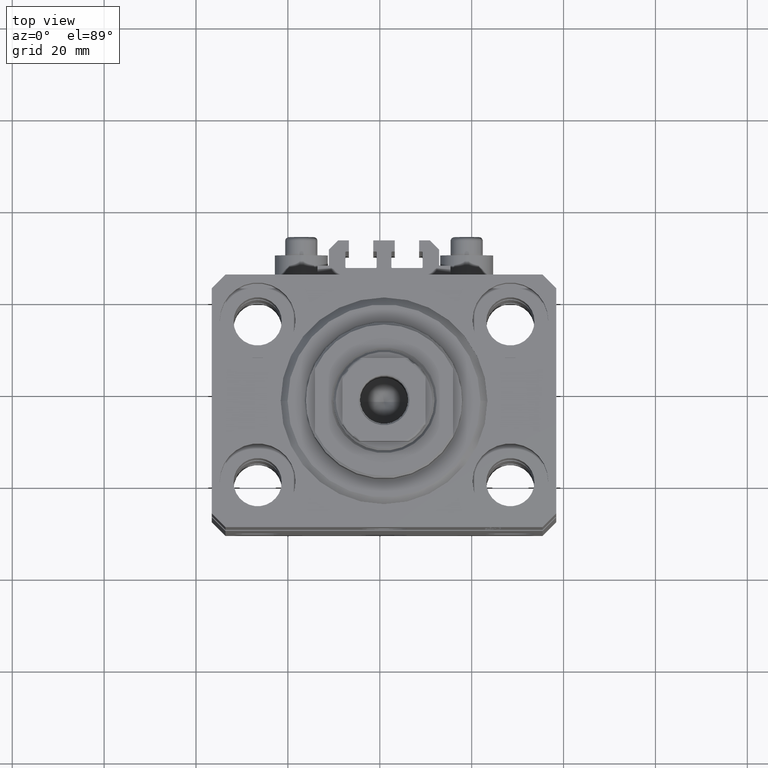
[diagram: clean part render]
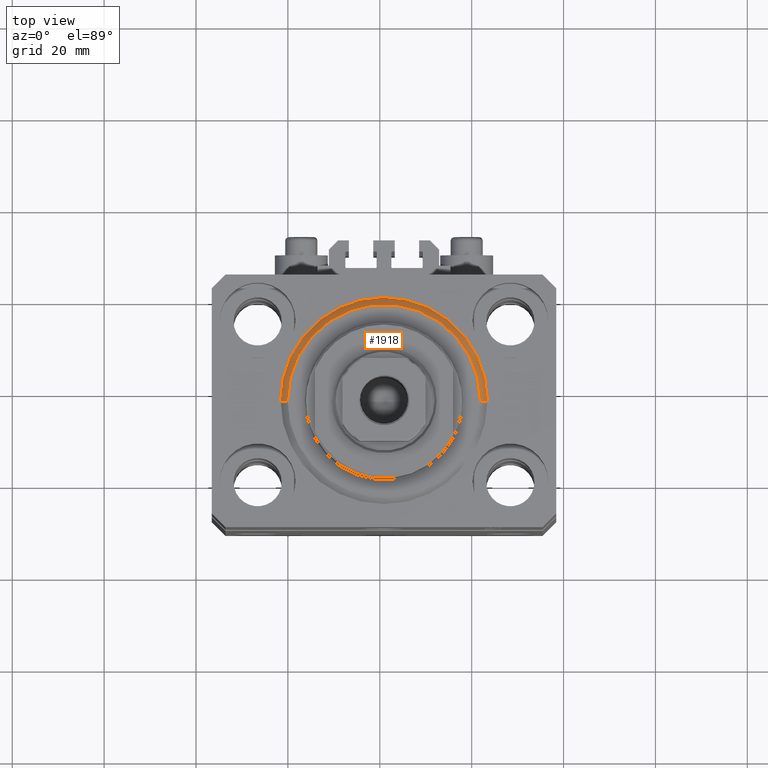
[diagram: same view with one face highlighted and labeled with its STEP entity id]
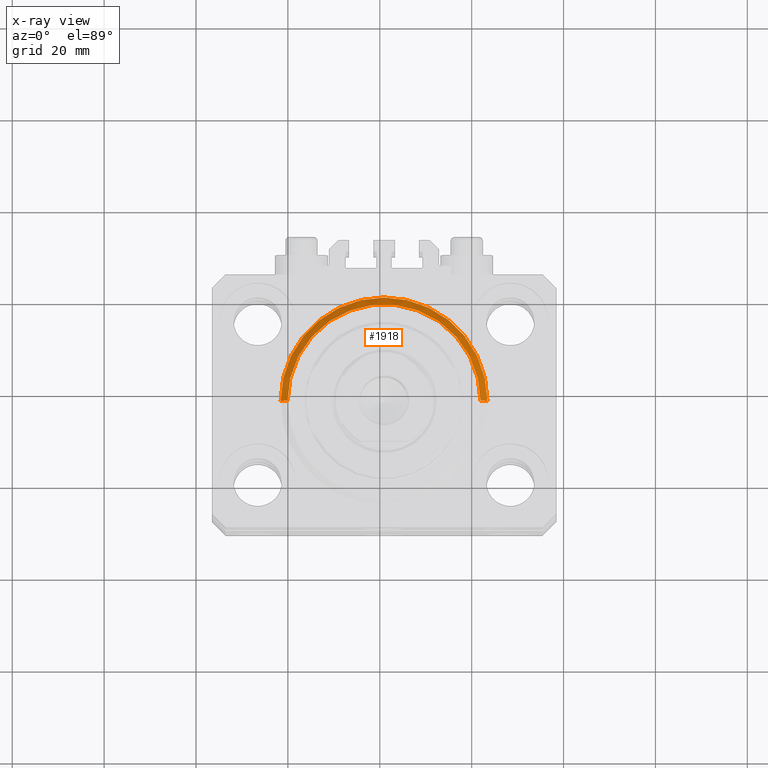
[diagram: x-ray of the same camera — body ghosted, the highlighted face saturated]
A machine part, top view. The second image highlights one B-rep face of the part: STEP entity #1918.
The next image is the same camera in x-ray: the body ghosted, the highlighted face saturated — about 0% of this face is hidden behind the body in this view.
In plain terms, the highlighted conical surface has half-angle 45 deg.
Its self-contained STEP definition (entity closure, byte-faithful):
#828 = CARTESIAN_POINT ( 'NONE',  ( 0.000000000000000000, 0.000000000000000000, 1.500000000000001332 ) ) ;
#1918 = ADVANCED_FACE ( 'NONE', ( #40564 ), #21441, .T. ) ;
#2065 = VERTEX_POINT ( 'NONE', #6590 ) ;
#2350 = CARTESIAN_POINT ( 'NONE',  ( 0.000000000000000000, 0.000000000000000000, 0.000000000000000000 ) ) ;
#3384 = CARTESIAN_POINT ( 'NONE',  ( 22.50000000000000355, 0.000000000000000000, 1.500000000000001332 ) ) ;
#3428 = CIRCLE ( 'NONE', #30499, 22.50000000000000355 ) ;
#3879 = CARTESIAN_POINT ( 'NONE',  ( -22.50000000000000355, 2.755455298081545172E-15, 1.500000000000001332 ) ) ;
#6590 = CARTESIAN_POINT ( 'NONE',  ( 20.99999999999998934, 0.000000000000000000, 0.000000000000000000 ) ) ;
#7516 = AXIS2_PLACEMENT_3D ( 'NONE', #33060, #25528, #10522 ) ;
#7708 = LINE ( 'NONE', #3384, #37644 ) ;
#8451 = LINE ( 'NONE', #3879, #18931 ) ;
#10522 = DIRECTION ( 'NONE',  ( 1.000000000000000000, 0.000000000000000000, 0.000000000000000000 ) ) ;
#10868 = DIRECTION ( 'NONE',  ( 0.7071067811865500152, 0.000000000000000000, 0.7071067811865451302 ) ) ;
#11172 = ORIENTED_EDGE ( 'NONE', *, *, #30246, .T. ) ;
#11927 = DIRECTION ( 'NONE',  ( 1.000000000000000000, 0.000000000000000000, 0.000000000000000000 ) ) ;
#12324 = ORIENTED_EDGE ( 'NONE', *, *, #28649, .F. ) ;
#15003 = DIRECTION ( 'NONE',  ( -0.7071067811865500152, 8.659560562354963673E-17, 0.7071067811865451302 ) ) ;
#17086 = DIRECTION ( 'NONE',  ( 1.000000000000000000, 0.000000000000000000, 0.000000000000000000 ) ) ;
#17992 = AXIS2_PLACEMENT_3D ( 'NONE', #2350, #20233, #17086 ) ;
#18514 = ORIENTED_EDGE ( 'NONE', *, *, #25191, .F. ) ;
#18931 = VECTOR ( 'NONE', #15003, 1000.000000000000114 ) ;
#19302 = VERTEX_POINT ( 'NONE', #40156 ) ;
#19408 = VERTEX_POINT ( 'NONE', #41579 ) ;
#20233 = DIRECTION ( 'NONE',  ( -0.000000000000000000, -0.000000000000000000, -1.000000000000000000 ) ) ;
#21089 = CIRCLE ( 'NONE', #17992, 20.99999999999998934 ) ;
#21441 = CONICAL_SURFACE ( 'NONE', #7516, 22.50000000000000355, 0.7853981633974517207 ) ;
#21486 = VERTEX_POINT ( 'NONE', #28601 ) ;
#25191 = EDGE_CURVE ( 'NONE', #19408, #2065, #21089, .T. ) ;
#25528 = DIRECTION ( 'NONE',  ( -0.000000000000000000, -0.000000000000000000, 1.000000000000000000 ) ) ;
#26227 = DIRECTION ( 'NONE',  ( -0.000000000000000000, -0.000000000000000000, 1.000000000000000000 ) ) ;
#28601 = CARTESIAN_POINT ( 'NONE',  ( -22.50000000000000355, 0.000000000000000000, 1.500000000000001332 ) ) ;
#28649 = EDGE_CURVE ( 'NONE', #19302, #21486, #3428, .T. ) ;
#30246 = EDGE_CURVE ( 'NONE', #19408, #21486, #8451, .T. ) ;
#30499 = AXIS2_PLACEMENT_3D ( 'NONE', #828, #26227, #11927 ) ;
#33060 = CARTESIAN_POINT ( 'NONE',  ( 0.000000000000000000, 0.000000000000000000, 1.500000000000001332 ) ) ;
#36368 = EDGE_CURVE ( 'NONE', #2065, #19302, #7708, .T. ) ;
#36764 = EDGE_LOOP ( 'NONE', ( #18514, #11172, #12324, #43546 ) ) ;
#37644 = VECTOR ( 'NONE', #10868, 1000.000000000000114 ) ;
#40156 = CARTESIAN_POINT ( 'NONE',  ( 22.50000000000000355, 2.755455298081545172E-15, 1.500000000000001332 ) ) ;
#40564 = FACE_OUTER_BOUND ( 'NONE', #36764, .T. ) ;
#41579 = CARTESIAN_POINT ( 'NONE',  ( -20.99999999999998934, 2.663606788145492628E-15, 0.000000000000000000 ) ) ;
#43546 = ORIENTED_EDGE ( 'NONE', *, *, #36368, .F. ) ;